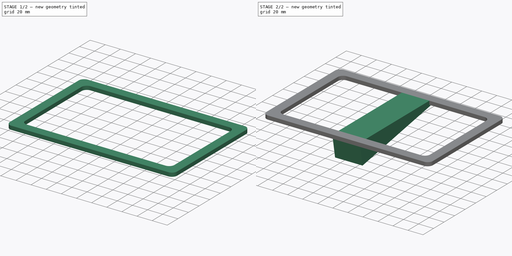
[diagram: build sequence overview — one tinted view per stage of 2, left to right]
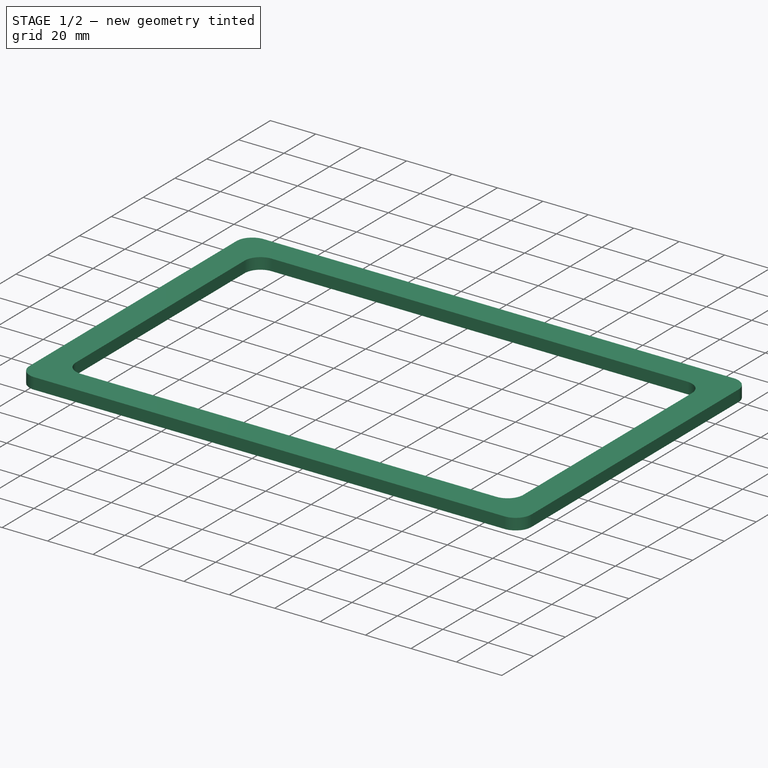
[diagram: stage 1 of 2 — iso view after this stage's code; geometry added in this stage tinted green]
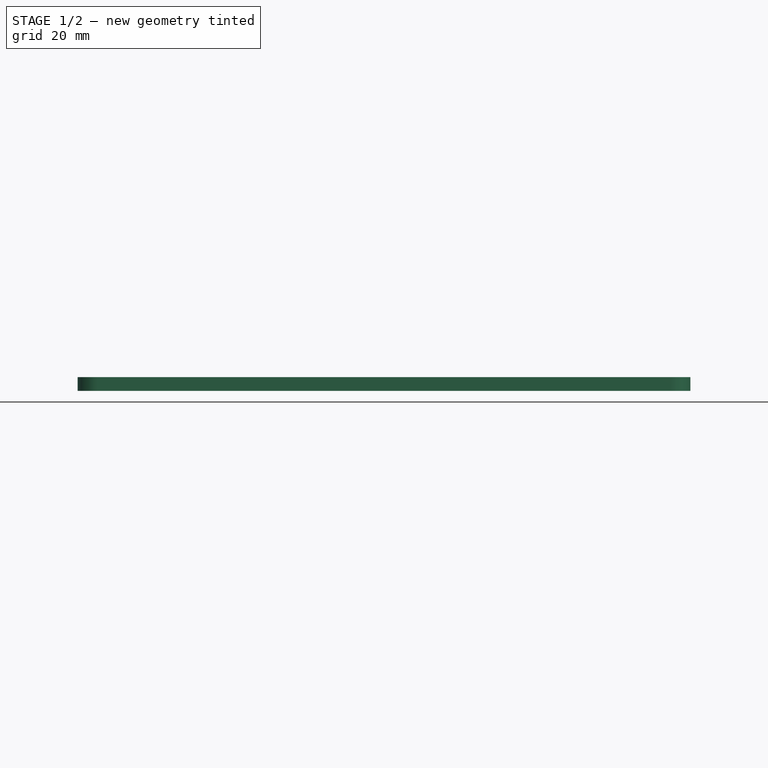
[diagram: stage 1 of 2 — front view after this stage's code; geometry added in this stage tinted green]
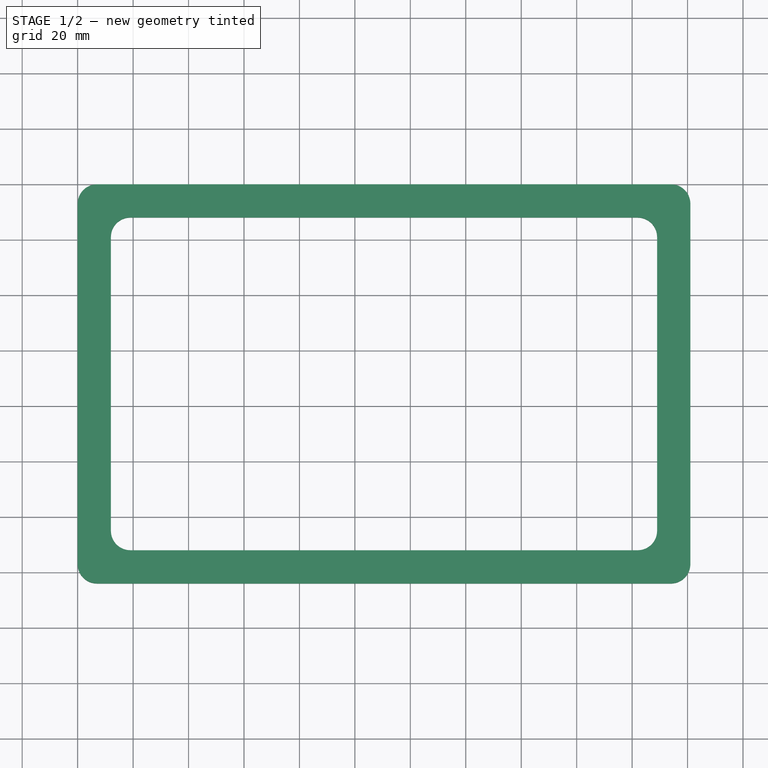
[diagram: stage 1 of 2 — top view after this stage's code; geometry added in this stage tinted green]
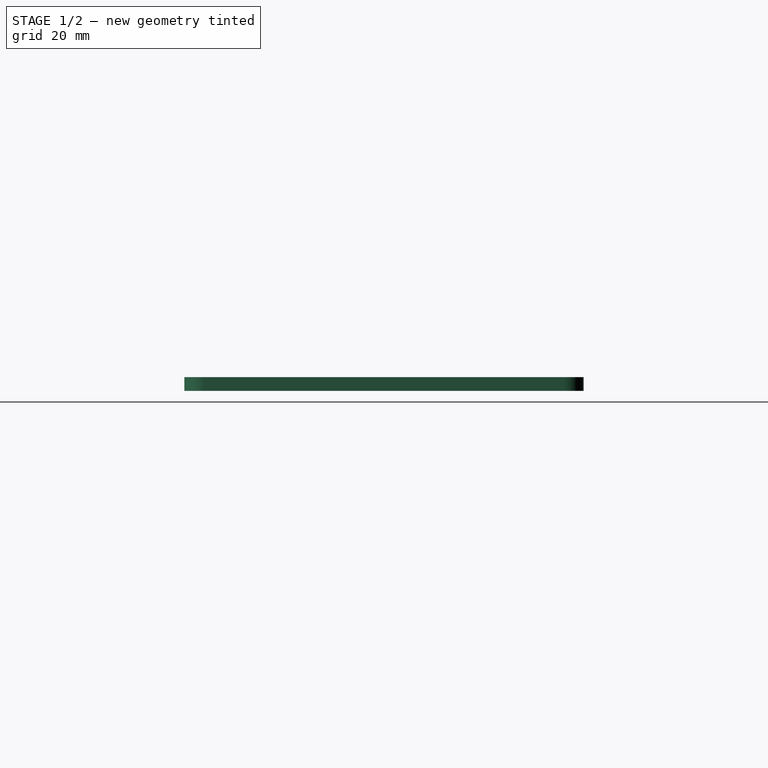
[diagram: stage 1 of 2 — right view after this stage's code; geometry added in this stage tinted green]
FCSTD DOCUMENT  (FreeCAD 0.20R29177 +426 (Git))
Label: RetroChipTesterCase
License: All rights reserved
LicenseURL: http://en.wikipedia.org/wiki/All_rights_reserved
objects: Sketcher::SketchObject×2, PartDesign::Pad×2, Spreadsheet::Sheet×1, PartDesign::Plane×1, PartDesign::Body×1, App::Part×1
note: 8 computed .brp shape members not serialized (recipe doc carries the construction recipe); baked Part::Feature solids carry a one-line shape summary decoded from their .brp

FEATURE [Spreadsheet::Sheet] Spreadsheet  label="Params"
  cells = A1=Width; B1(Width)=215; A2=Height; B2(Height)=138; A3=Angle; B3(Angle)=10; A4=Support thickness; B4(SupportThickness)=15; A5=Column width; B5(ColumnWidth)=36.5; A6=Walls; B6(Walls)=3; A7=Frame; B7(Frame)=12
FEATURE [Sketcher::SketchObject] Sketch
  FullyConstrained = true
  MapMode = 5
  Support = -> [XY_Plane001]
  expr: Constraints[11] = <<Params>>.Frame
  expr: Constraints[12] = <<Params>>.Frame
  expr: Constraints[13] = <<Params>>.Frame
  expr: Constraints[14] = <<Params>>.Frame
  expr: Constraints[50] = 4 + <<Params>>.Walls
  expr: Constraints[5] = <<Params>>.Width + 2 * <<Params>>.Walls
  expr: Constraints[6] = <<Params>>.Height + 2 * <<Params>>.Walls
  sketch-geometry (24):
    g0: LineSegment StartX=7 StartY=0 StartZ=0 EndX=214 EndY=0 EndZ=0
    g1: LineSegment StartX=221 StartY=-7 StartZ=0 EndX=221 EndY=-137 EndZ=0
    g2: LineSegment StartX=214 StartY=-144 StartZ=0 EndX=7 EndY=-144 EndZ=0
    g3: LineSegment StartX=0 StartY=-137 StartZ=0 EndX=0 EndY=-7 EndZ=0
    g4: LineSegment StartX=19 StartY=-12 StartZ=0 EndX=202 EndY=-12 EndZ=0
    g5: LineSegment StartX=209 StartY=-19 StartZ=0 EndX=209 EndY=-125 EndZ=0
    g6: LineSegment StartX=202 StartY=-132 StartZ=0 EndX=19 EndY=-132 EndZ=0
    g7: LineSegment StartX=12 StartY=-125 StartZ=0 EndX=12 EndY=-19 EndZ=0
    g8: ArcOfCircle CenterX=19 CenterY=-19 CenterZ=0 NormalX=0 NormalY=0 NormalZ=1 AngleXU=0 Radius=7 StartAngle=1.5708 EndAngle=3.14159
    g9: GeomPoint X=12 Y=-12 Z=0
    g10: ArcOfCircle CenterX=202 CenterY=-19 CenterZ=0 NormalX=0 NormalY=0 NormalZ=1 AngleXU=0 Radius=7 StartAngle=0 EndAngle=1.5708
    g11: GeomPoint X=209 Y=-12 Z=0
    g12: ArcOfCircle CenterX=202 CenterY=-125 CenterZ=0 NormalX=0 NormalY=0 NormalZ=1 AngleXU=0 Radius=7 StartAngle=4.71239 EndAngle=6.28319
    g13: GeomPoint X=209 Y=-132 Z=0
    g14: ArcOfCircle CenterX=19 CenterY=-125 CenterZ=0 NormalX=0 NormalY=0 NormalZ=1 AngleXU=0 Radius=7 StartAngle=3.14159 EndAngle=4.71239
    g15: GeomPoint X=12 Y=-132 Z=0
    g16: ArcOfCircle CenterX=7 CenterY=-7 CenterZ=0 NormalX=0 NormalY=0 NormalZ=1 AngleXU=0 Radius=7 StartAngle=1.5708 EndAngle=3.14159
    g17: GeomPoint X=0 Y=0 Z=0
    g18: ArcOfCircle CenterX=214 CenterY=-7 CenterZ=0 NormalX=0 NormalY=0 NormalZ=1 AngleXU=0 Radius=7 StartAngle=0 EndAngle=1.5708
    g19: GeomPoint X=221 Y=0 Z=0
    g20: ArcOfCircle CenterX=214 CenterY=-137 CenterZ=0 NormalX=0 NormalY=0 NormalZ=1 AngleXU=0 Radius=7 StartAngle=4.71239 EndAngle=6.28319
    g21: GeomPoint X=221 Y=-144 Z=0
    g22: ArcOfCircle CenterX=7 CenterY=-137 CenterZ=0 NormalX=0 NormalY=0 NormalZ=1 AngleXU=0 Radius=7 StartAngle=3.14159 EndAngle=4.71239
    g23: GeomPoint X=0 Y=-144 Z=0
  constraints (55):
    c: Horizontal(g0)
    c: Horizontal(g2)
    c: Vertical(g1)
    c: Vertical(g3)
    c: Coincident(g17,g-1)
    c: DistanceX(g17,g19) = 221
    c: DistanceY(g23,g17) = 144
    c: Horizontal(g4)
    c: Horizontal(g6)
    c: Vertical(g5)
    c: Vertical(g7)
    c: DistanceY(g11,g19) = 12
    c: DistanceY(g21,g13) = 12
    c: DistanceX(g11,g19) = 12
    c: DistanceX(g23,g15) = 12
    c: PointOnObject(g9,g7)
    c: PointOnObject(g9,g4)
    c: Tangent(g7,g8) = 1.5708
    c: Tangent(g4,g8) = 1.5708
    c: PointOnObject(g11,g4)
    c: PointOnObject(g11,g5)
    c: Tangent(g4,g10) = 1.5708
    c: Tangent(g5,g10) = 1.5708
    c: PointOnObject(g13,g5)
    c: PointOnObject(g13,g6)
    c: Tangent(g5,g12) = 1.5708
    c: Tangent(g6,g12) = 1.5708
    c: PointOnObject(g15,g7)
    c: PointOnObject(g15,g6)
    c: Tangent(g7,g14) = 1.5708
    c: Tangent(g6,g14) = 1.5708
    c: Equal(g8,g10)
    c: Equal(g12,g14)
    c: Equal(g8,g14)
    c: PointOnObject(g17,g3)
    c: PointOnObject(g17,g0)
    c: Tangent(g3,g16) = 1.5708
    c: Tangent(g0,g16) = 1.5708
    c: PointOnObject(g19,g0)
    c: PointOnObject(g19,g1)
    c: Tangent(g0,g18) = 1.5708
    c: Tangent(g1,g18) = 1.5708
    c: PointOnObject(g21,g1)
    c: PointOnObject(g21,g2)
    c: Tangent(g1,g20) = 1.5708
    c: Tangent(g2,g20) = 1.5708
    c: PointOnObject(g23,g2)
    c: PointOnObject(g23,g3)
    c: Tangent(g2,g22) = 1.5708
    c: Tangent(g3,g22) = 1.5708
    c: Radius(g16) = 7
    c: Equal(g16,g22)
    c: Equal(g20,g22)
    c: Equal(g18,g20)
    c: Equal(g16,g8)
FEATURE [PartDesign::Pad] Pad
  Direction = (0,0,1)
  Length = 5
  Length2 = 10
  Profile = -> Sketch
  ReferenceAxis = -> Sketch [N_Axis]
  Type = 0
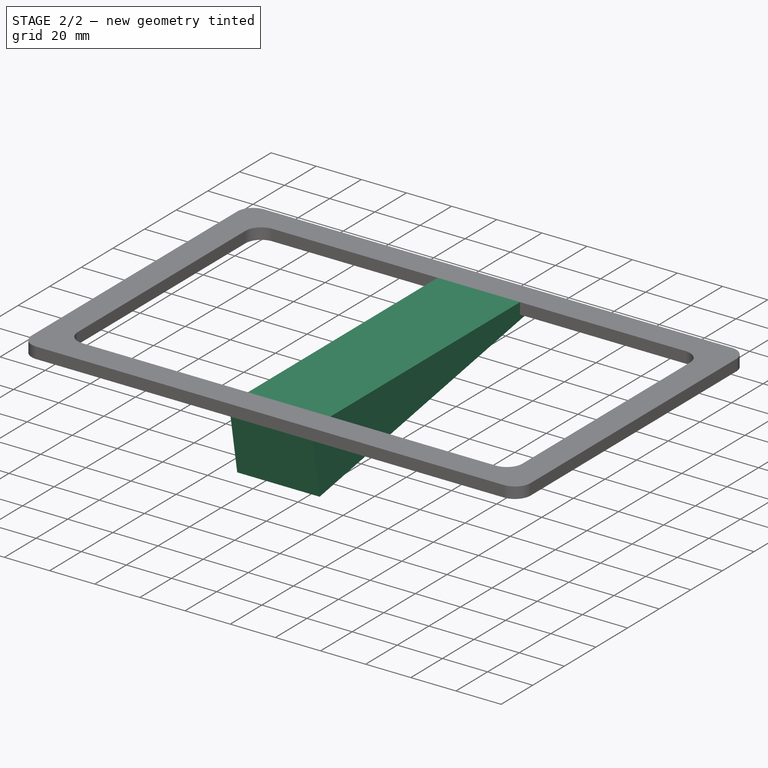
[diagram: stage 2 of 2 — iso view after this stage's code; geometry added in this stage tinted green]
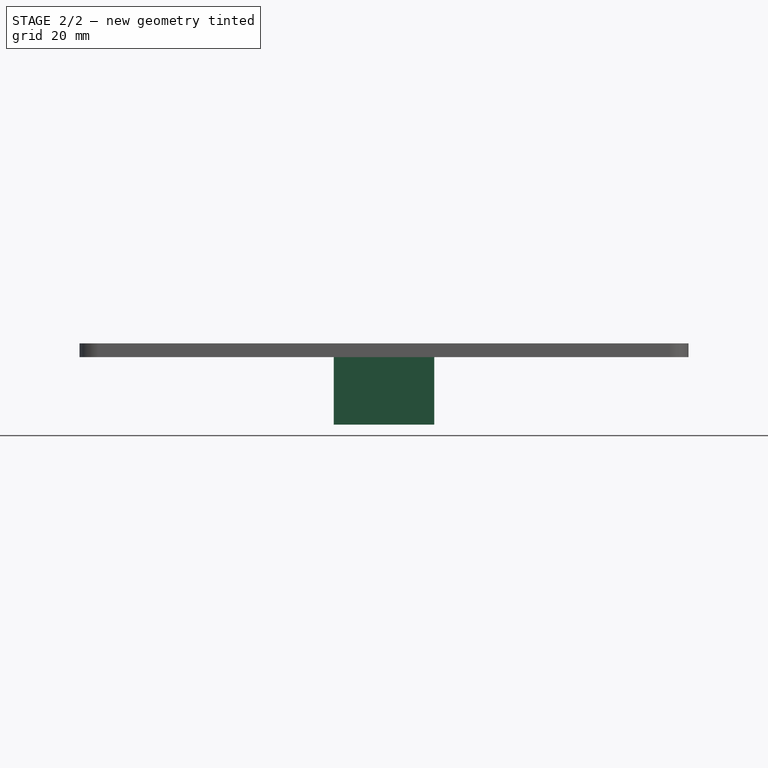
[diagram: stage 2 of 2 — front view after this stage's code; geometry added in this stage tinted green]
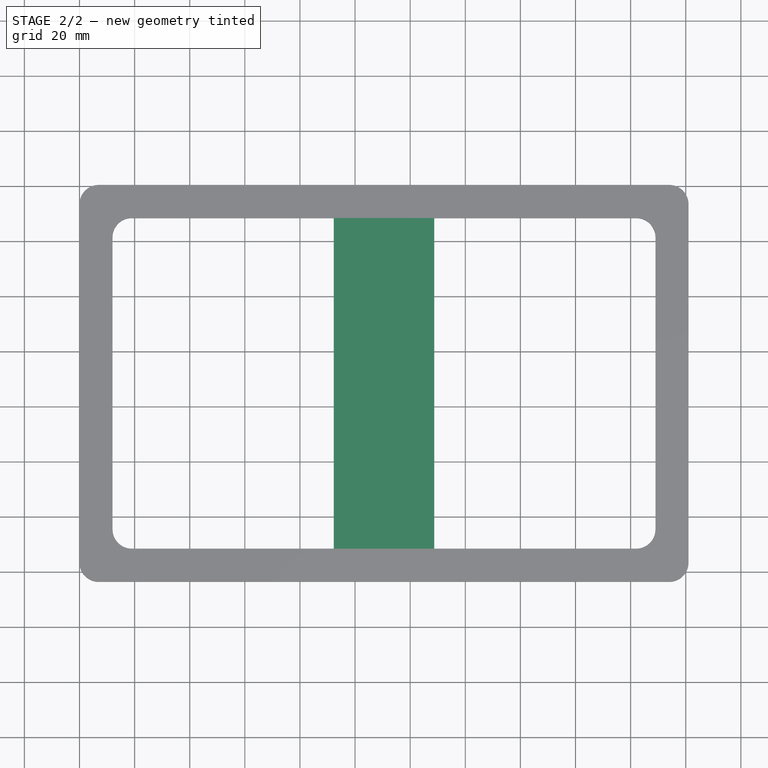
[diagram: stage 2 of 2 — top view after this stage's code; geometry added in this stage tinted green]
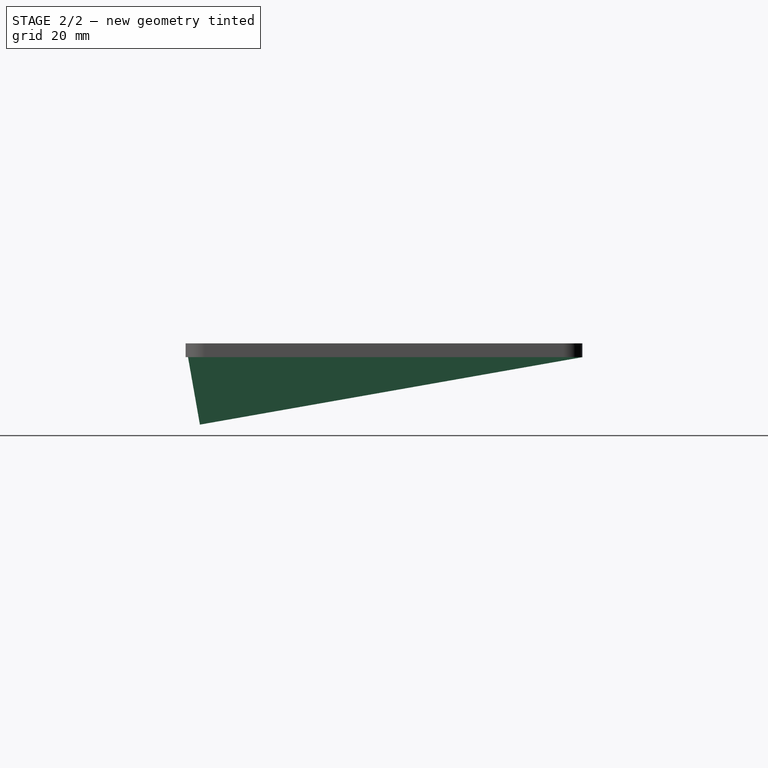
[diagram: stage 2 of 2 — right view after this stage's code; geometry added in this stage tinted green]
FEATURE [PartDesign::Plane] DatumPlane
  AttachmentOffset = pos=(0,0,110.5) rot=(0,0,1;0rad)
  Length = 60
  MapMode = 5
  Placement = pos=(110.5,-2.45e-14,2.45e-14) rot=(0.57735,0.57735,0.57735;2.0944rad)
  ResizeMode = 0
  Support = -> [YZ_Plane001]
  Width = 60
  expr: .AttachmentOffset.Base.z = <<Params>>.Width / 2 + <<Params>>.Walls
FEATURE [Sketcher::SketchObject] Sketch001
  FullyConstrained = true
  MapMode = 5
  Placement = pos=(110.5,-2.45e-14,2.45e-14) rot=(0.57735,0.57735,0.57735;2.0944rad)
  Support = -> [DatumPlane]
  expr: Constraints[10] = <<Params>>.Angle
  expr: Constraints[2] = -<<Params>>.Angle
  expr: Constraints[3] = -(<<Params>>.Height + <<Params>>.Walls * 2)
  sketch-geometry (4):
    g0: LineSegment StartX=0 StartY=0 StartZ=0 EndX=-138.803 EndY=-24.4747 EndZ=0
    g1: LineSegment StartX=-138.803 StartY=-24.4747 StartZ=0 EndX=-144 EndY=5 EndZ=0
    g2: LineSegment StartX=-144 StartY=5 StartZ=0 EndX=0 EndY=5 EndZ=0
    g3: LineSegment StartX=0 StartY=5 StartZ=0 EndX=0 EndY=0 EndZ=0
  constraints (11):
    c: Coincident(g0,g1)
    c: Coincident(g1,g2)
    c: Angle(g0,g2) = -0.174533
    c: DistanceX(g2,g2) = -144
    c: Horizontal(g2)
    c: Coincident(g-1,g0)
    c: PointOnObject(g2,g-2)
    c: DistanceY(g0,g2) = 5
    c: Coincident(g3,g2)
    c: Coincident(g3,g0)
    c: Angle(g-2,g1) = 0.174533
FEATURE [PartDesign::Pad] Pad001
  BaseFeature = -> Pad
  Direction = (1,-1e-16,1e-16)
  Length = 36.5
  Length2 = 10
  Midplane = true
  Profile = -> Sketch001
  ReferenceAxis = -> Sketch001 [N_Axis]
  Type = 0
  expr: Length = <<Params>>.ColumnWidth
FEATURE [PartDesign::Body] Body  label="BackBody"
  Group = -> [Sketch,Pad,DatumPlane,Sketch001,Pad001]
  Origin = -> Origin001
  Tip = -> Pad001
FEATURE [App::Part] Part  label="Back"
  Group = -> [Body]
  Origin = -> Origin
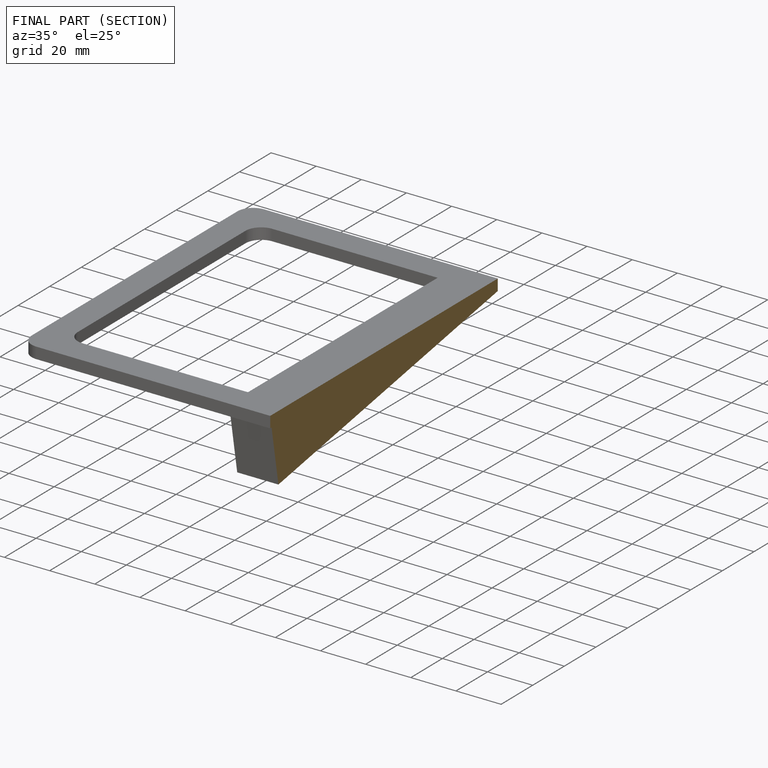
[diagram: finished part — half-section view (interior)]
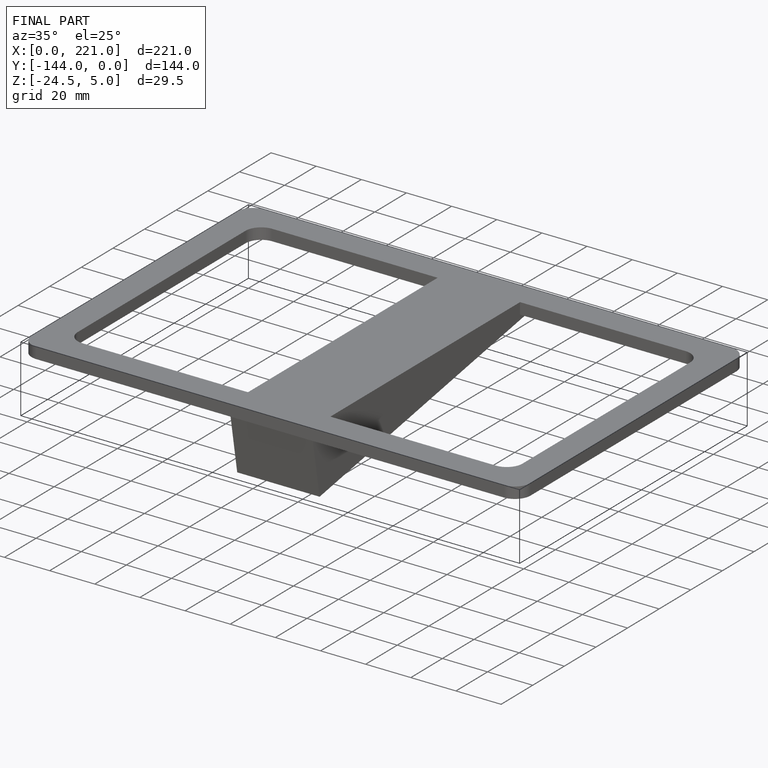
[diagram: finished part — iso view with bounding-box wireframe]
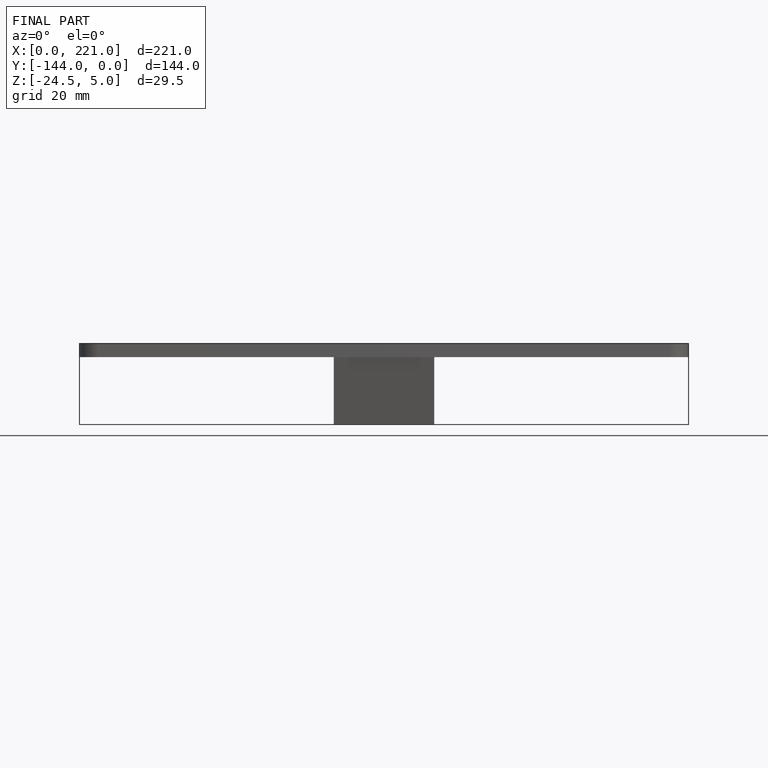
[diagram: finished part — front view with bounding-box wireframe]
